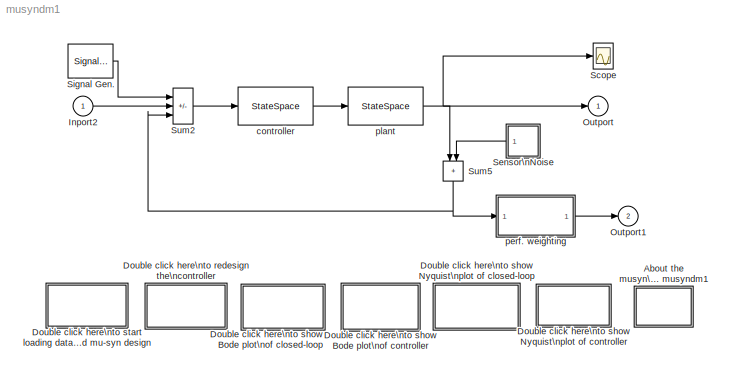
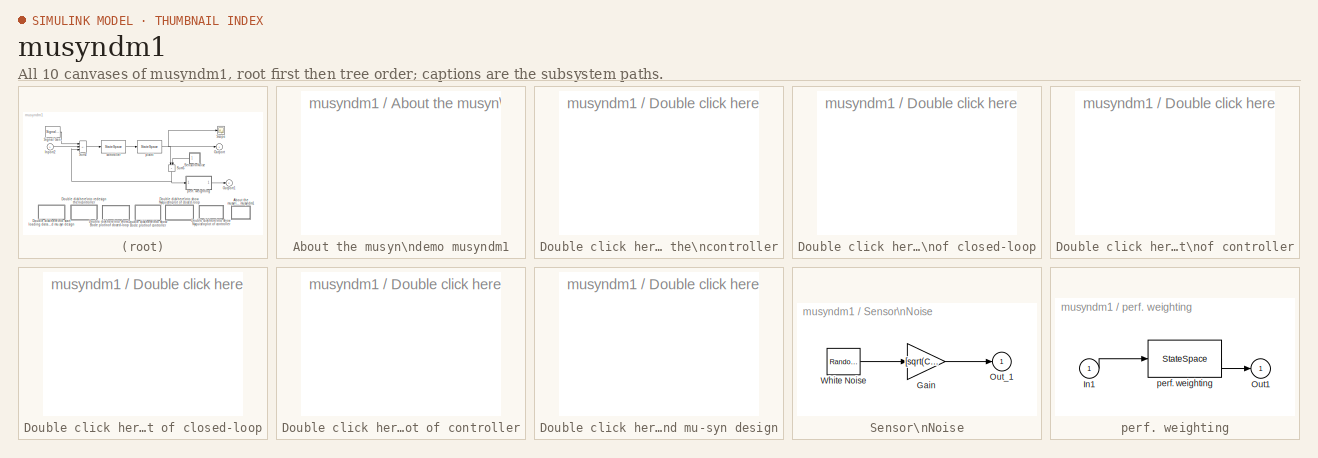
[diagram: thumbnail index - all 10 canvases of the model, root first then tree order]
MODEL musyndm1
KIND model
CONFIG AbsTol = 1e-6
CONFIG FixedStep = auto
CONFIG MaxStep = auto
CONFIG PreLoadFcn = mudata1
CONFIG RelTol = 1e-3
CONFIG Solver = ode15s
CONFIG SolverMode = SingleTasking
CONFIG StartTime = 0.0
CONFIG StopTime = 200
BLOCK [SubSystem] About the musyn\ndemo musyndm1
  MaskDisplay = disp('?')
  MaskIconFrame = on
  MaskIconOpaque = on
  MaskIconRotate = none
  MaskIconUnits = autoscale
  OpenFcn = clc; more(24); help mudata1; more off
  Ports = [0, 0, 0, 0, 0]
  ShowPortLabels = on
BLOCK [SubSystem] Double click here\nto redesign the\ncontroller
  MaskDisplay = disp('Re-design')
  MaskIconFrame = on
  MaskIconOpaque = on
  MaskIconRotate = none
  MaskIconUnits = autoscale
  OpenFcn = if ~exist('mu'),fprintf('\\nMust be licensed for RCT Toolbox\\n'), else, fprintf('\\nPress Ctrl_C to abort MuSyn Calculation\\n\\n'); mudes1; end
  Ports = [0, 0, 0, 0, 0]
  ShowPortLabels = on
BLOCK [SubSystem] Double click here\nto show Bode plot\nof closed-loop
  MaskDisplay = disp('Closed-Loop\\nBode Plot')
  MaskIconFrame = on
  MaskIconOpaque = on
  MaskIconRotate = none
  MaskIconUnits = autoscale
  OpenFcn = if ~exist('mu'),fprintf('\\nMust be licensed for Mu Toolbox\\n'),elseif ~exist('g1'),fprintf('\\nMust Load Data & Design First\\n'),else,eval('vplot(''bode'',frsp(g1,logspace(-2,4,32)))');end
  Ports = [0, 0, 0, 0, 0]
  ShowPortLabels = on
BLOCK [SubSystem] Double click here\nto show Bode plot\nof controller
  MaskDisplay = disp('Controller\\nBode Plot')
  MaskIconFrame = on
  MaskIconOpaque = on
  MaskIconRotate = none
  MaskIconUnits = autoscale
  OpenFcn = if ~exist('mu'),fprintf('\\nMust be licensed for Mu Toolbox\\n'),elseif ~exist('k1'),fprintf('\\nMust Load Data & Design First\\n'),else,eval('vplot(''bode'',frsp(k1,logspace(-2,4,32)))');end
  Ports = [0, 0, 0, 0, 0]
  ShowPortLabels = on
BLOCK [SubSystem] Double click here\nto show Nyquist\nplot of closed-loop
  MaskDisplay = disp('Closed-Loop\\nNyquist')
  MaskIconFrame = on
  MaskIconOpaque = on
  MaskIconRotate = none
  MaskIconUnits = autoscale
  OpenFcn = if ~exist('mu'),fprintf('\\nMust be licensed for Mu Toolbox\\n'),elseif ~exist('g1'),fprintf('\\nMust Load Data First\\n'),else,clf;omtt=logspace(-6,6,100);eval('vplot(''nyq'',frsp(g1,omtt),frsp(g1,-omtt))');end
  Ports = [0, 0, 0, 0, 0]
  ShowPortLabels = on
BLOCK [SubSystem] Double click here\nto show Nyquist\nplot of controller
  MaskDisplay = disp('Controller\\nNyquist')
  MaskIconFrame = on
  MaskIconOpaque = on
  MaskIconRotate = none
  MaskIconUnits = autoscale
  OpenFcn = if ~exist('mu'),fprintf('\\nMust be licensed for Mu Toolbox\\n'),elseif ~exist('g1'),fprintf('\\nMust Load Data First\\n'),else,clf;omtt=logspace(-6,6,100);eval('vplot(''nyq'',frsp(k1,omtt),frsp(k1,-omtt))');end
  Ports = [0, 0, 0, 0, 0]
  ShowPortLabels = on
BLOCK [SubSystem] Double click here\nto start loading data\nand mu-syn design
  MaskDisplay = disp('Re-Load\\nData')
  MaskIconFrame = on
  MaskIconOpaque = on
  MaskIconRotate = none
  MaskIconUnits = autoscale
  OpenFcn = if ~exist('mu'),fprintf('\\nMust be licensed for MuSyn Toolbox\\n'), else, fprintf('\\nLoading Data\\nWarning: New data will overlap the original working space data'); mudata1; end
  Ports = [0, 0, 0, 0, 0]
  ShowPortLabels = on
BLOCK [Inport] Inport2
  DataType = auto
  Interpolate = on
  Port = 1
  PortWidth = -1
  SampleTime = -1
  SignalType = auto
BLOCK [Outport] Outport
  InitialOutput = []
  OutputWhenDisabled = held
  Port = 1
BLOCK [Outport] Outport1
  InitialOutput = []
  OutputWhenDisabled = held
  Port = 2
BLOCK [Scope] Scope
  DataFormat = Matrix
  Decimation = 1
  Floating = off
  Grid = on
  LimitMaxRows = on
  MaxRows = 5000
  NumInputPorts = 1
  Ports = [1, 0, 0, 0, 0]
  SampleInput = off
  SampleTime = 0
  SaveName = ScopeData
  SaveToWorkspace = off
  TickLabels = on
  TimeRange = 20.000000
  YMax = 5
  YMin = -5
  ZoomMode = xonly
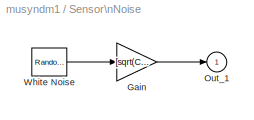
BLOCK [SubSystem] Sensor\nNoise
  MaskCallbackString = ||
  MaskDescription = White noise for continuous (s-domain) systems.\nBand-limited using zero-order-hold.
  MaskDisplay = plot(t(:),r2(:))
  MaskEnableString = on,on,on
  MaskHelp = Implemented using white noise into Zero-Order Hold block. The seed and power can be vectors of the same length to produce a vector of white noise sources. For faster simulation, set sample time to the highest value possible but in accordance with the fastest dynamics of system.
  MaskIconFrame = on
  MaskIconOpaque = on
  MaskIconRotate = none
  MaskIconUnits = autoscale
  MaskInitialization = Cov = @1; Ts = @2; seed = @3; r = rand(1,12); r2 = [r(1),r;r,r(12)]; t =[1:13;1:13];
  MaskPromptString = Noise Power:|Sample Time:|Seed
  MaskStyleString = edit,edit,edit
  MaskTunableValueString = on,on,on
  MaskValueString = 0.02|0.1|[23341]
  MaskVisibilityString = on,on,on
  Ports = [0, 1, 0, 0, 0]
  ShowPortLabels = on
BLOCK [Gain] Sensor\nNoise/Gain
  Gain = [sqrt(Cov)]/[sqrt(Ts)]
  SaturateOnIntegerOverflow = on
BLOCK [Outport] Sensor\nNoise/Out_1
  InitialOutput = []
  OutputWhenDisabled = held
  Port = 1
BLOCK [RandomNumber] Sensor\nNoise/White Noise
  Mean = 0
  SampleTime = Ts
  Seed = seed
  Variance = 1
BLOCK [SignalGenerator] Signal Gen.
  Amplitude = 2.000000
  Frequency = 1.000000
  Units = rad/sec
  WaveForm = square
BLOCK [Sum] Sum2
  IconShape = rectangular
  Inputs = -++
  Ports = [3, 1, 0, 0, 0]
  SaturateOnIntegerOverflow = on
BLOCK [Sum] Sum5
  IconShape = rectangular
  Inputs = ++
  MaskIconFrame = on
  MaskIconOpaque = on
  MaskIconRotate = none
  MaskIconUnits = autoscale
  Ports = [2, 1, 0, 0, 0]
  SaturateOnIntegerOverflow = on
BLOCK [StateSpace] controller
  A = ak
  B = bk
  C = ck
  D = dk
  X0 = 0
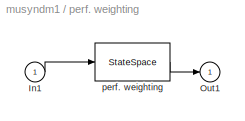
BLOCK [SubSystem] perf. weighting
  MaskCallbackString = |
  MaskDescription = Performance weighting function:
  MaskDisplay = disp('weighting\\nfunc.')
  MaskEnableString = on,on
  MaskHelp = This is the weighting function of the plant model.
  MaskIconFrame = on
  MaskIconOpaque = on
  MaskIconRotate = none
  MaskIconUnits = autoscale
  MaskInitialization = [ap,bp,cp,dp]=tf2ss(@1,@2);
  MaskPromptString = numerator:|denominator:
  MaskStyleString = edit,edit
  MaskTunableValueString = on,on
  MaskValueString = num|den
  MaskVisibilityString = on,on
  Ports = [1, 1, 0, 0, 0]
  ShowPortLabels = on
BLOCK [Inport] perf. weighting/In1
  DataType = auto
  Interpolate = on
  Port = 1
  PortWidth = -1
  SampleTime = -1
  SignalType = auto
BLOCK [Outport] perf. weighting/Out1
  InitialOutput = []
  OutputWhenDisabled = held
  Port = 1
BLOCK [StateSpace] perf. weighting/perf. weighting
  A = ap
  B = bp
  C = cp
  D = dp
  X0 = 0
BLOCK [StateSpace] plant
  A = a
  B = b
  C = c
  D = d
  X0 = 0
LINE Inport2:1 -> Sum2:2
LINE Sensor\nNoise/Gain:1 -> Sensor\nNoise/Out_1:1
LINE Sensor\nNoise/White Noise:1 -> Sensor\nNoise/Gain:1
LINE Sensor\nNoise:1 -> Sum5:2
LINE Signal Gen.:1 -> Sum2:1
LINE Sum2:1 -> controller:1
NET Sum5:1 -> Sum2:3, perf. weighting:1
LINE controller:1 -> plant:1
LINE perf. weighting/In1:1 -> perf. weighting/perf. weighting:1
LINE perf. weighting/perf. weighting:1 -> perf. weighting/Out1:1
LINE perf. weighting:1 -> Outport1:1
NET plant:1 -> Outport:1, Scope:1, Sum5:1
note: NET lines group one-source signal fan-out (src -> all destinations, sorted); 1:1 wires keep LINE
